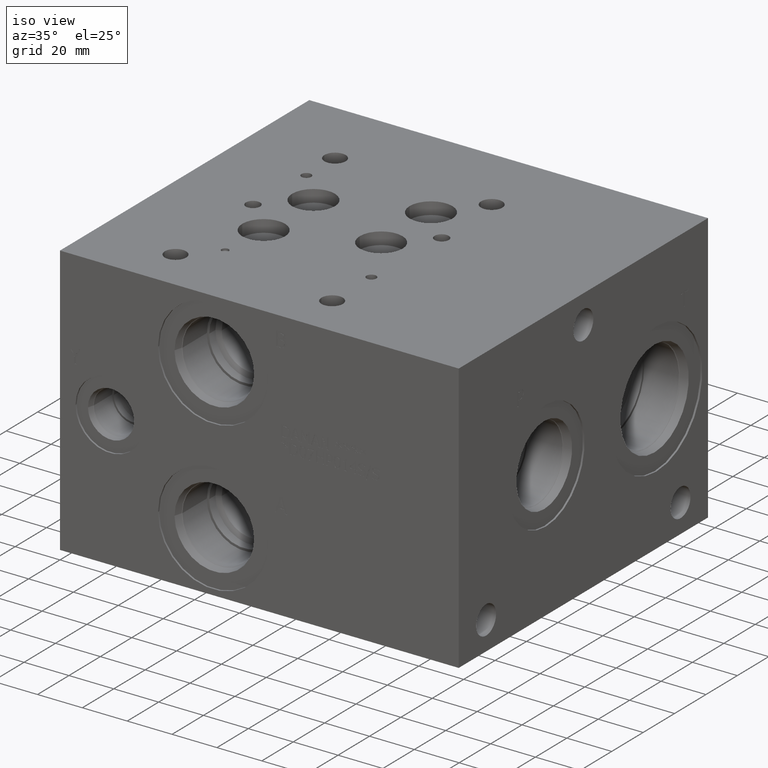
[diagram: clean part render]
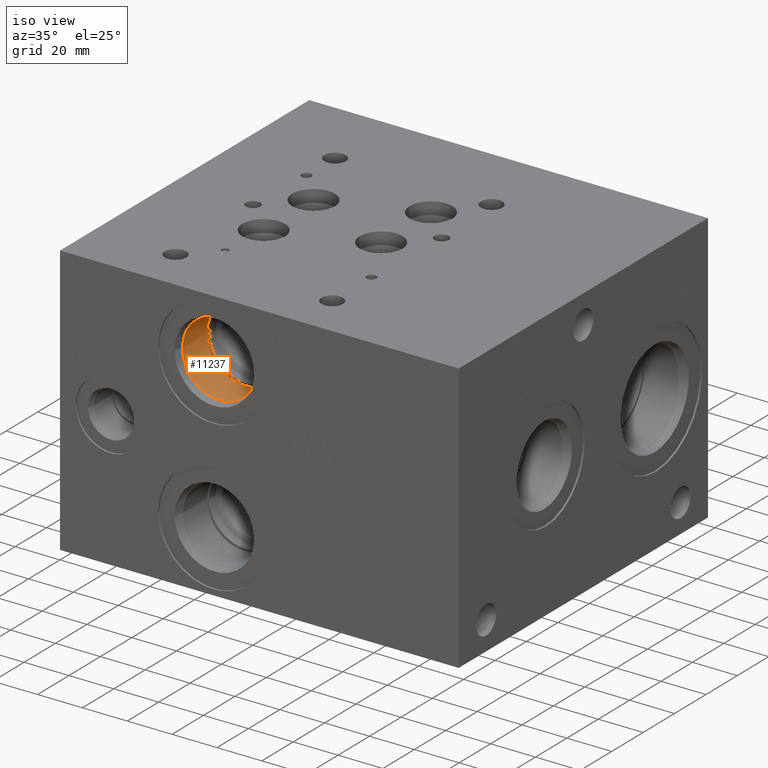
[diagram: same view with one face highlighted and labeled with its STEP entity id]
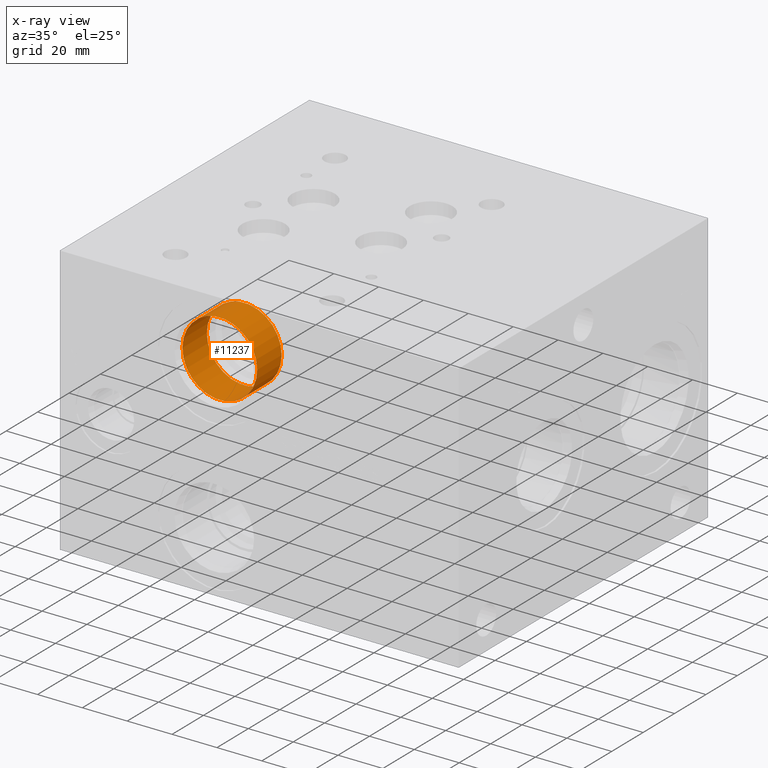
[diagram: x-ray of the same camera — body ghosted, the highlighted face saturated]
A machine part, iso view. The second image highlights one B-rep face of the part: STEP entity #11237.
The next image is the same camera in x-ray: the body ghosted, the highlighted face saturated — about 0% of this face is hidden behind the body in this view.
In plain terms, the highlighted cylindrical surface (bore or boss wall) has radius 16.67 mm, axis along (0, -1, 0).
Its self-contained STEP definition (entity closure, byte-faithful):
#106=CYLINDRICAL_SURFACE('',#11893,16.67);
#305=CIRCLE('',#11890,16.67);
#306=CIRCLE('',#11891,16.67);
#308=CIRCLE('',#11894,16.67);
#1354=FACE_OUTER_BOUND('',#2008,.T.);
#2008=EDGE_LOOP('',(#9614,#9615,#9616,#9617,#9618));
#3107=LINE('',#18933,#4168);
#4168=VECTOR('',#14227,16.67);
#5176=VERTEX_POINT('',#18924);
#5177=VERTEX_POINT('',#18925);
#5179=VERTEX_POINT('',#18931);
#6694=EDGE_CURVE('',#5176,#5177,#305,.T.);
#6695=EDGE_CURVE('',#5177,#5176,#306,.T.);
#6697=EDGE_CURVE('',#5179,#5179,#308,.T.);
#6698=EDGE_CURVE('',#5179,#5177,#3107,.T.);
#9614=ORIENTED_EDGE('',*,*,#6697,.F.);
#9615=ORIENTED_EDGE('',*,*,#6698,.T.);
#9616=ORIENTED_EDGE('',*,*,#6694,.F.);
#9617=ORIENTED_EDGE('',*,*,#6695,.F.);
#9618=ORIENTED_EDGE('',*,*,#6698,.F.);
#11237=ADVANCED_FACE('',(#1354),#106,.F.);
#11890=AXIS2_PLACEMENT_3D('',#18926,#14217,#14218);
#11891=AXIS2_PLACEMENT_3D('',#18927,#14219,#14220);
#11893=AXIS2_PLACEMENT_3D('',#18930,#14223,#14224);
#11894=AXIS2_PLACEMENT_3D('',#18932,#14225,#14226);
#14217=DIRECTION('center_axis',(0.,-1.,0.));
#14218=DIRECTION('ref_axis',(1.,0.,0.));
#14219=DIRECTION('center_axis',(0.,-1.,0.));
#14220=DIRECTION('ref_axis',(1.,0.,0.));
#14223=DIRECTION('center_axis',(0.,-1.,0.));
#14224=DIRECTION('ref_axis',(1.,0.,0.));
#14225=DIRECTION('center_axis',(0.,1.,0.));
#14226=DIRECTION('ref_axis',(1.,0.,0.));
#14227=DIRECTION('',(0.,1.,0.));
#18924=CARTESIAN_POINT('',(84.9452,19.8374,93.6498));
#18925=CARTESIAN_POINT('',(51.6052,19.8374,93.6498));
#18926=CARTESIAN_POINT('Origin',(68.2752,19.8374,93.6498));
#18927=CARTESIAN_POINT('Origin',(68.2752,19.8374,93.6498));
#18930=CARTESIAN_POINT('Origin',(68.2752,9.9187,93.6498));
#18931=CARTESIAN_POINT('',(51.6052,4.2723,93.6498));
#18932=CARTESIAN_POINT('Origin',(68.2752,4.2723,93.6498));
#18933=CARTESIAN_POINT('',(51.6052,9.9187,93.6498));